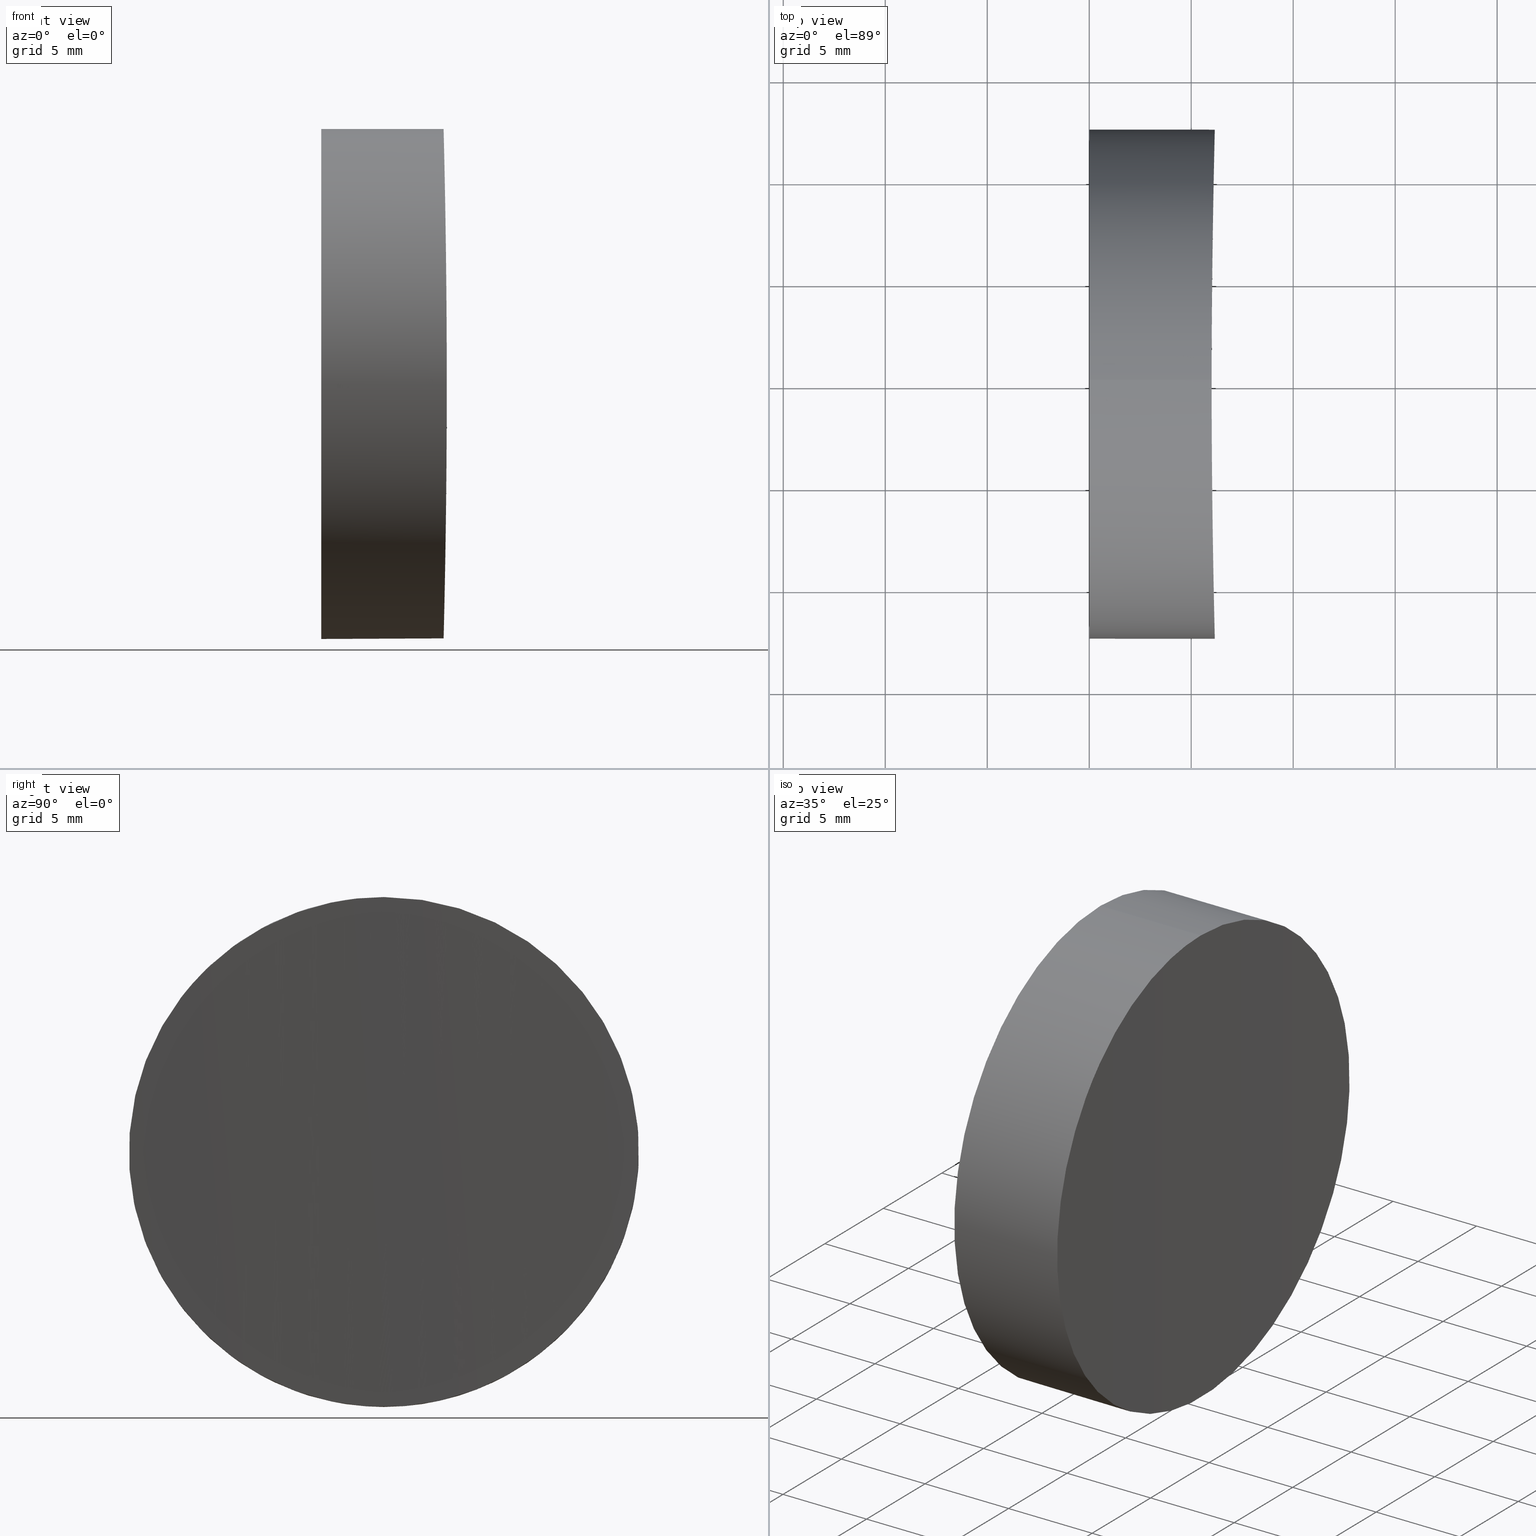
[diagram: canonical four-view strip — front | top / right | iso, engineering-drawing reading convention]
A machine part, canonical four-view strip (front | top / right | iso — engineering-drawing reading convention). The complete STEP part file that produces these views, byte-faithful:
ISO-10303-21;
HEADER;
FILE_DESCRIPTION (( 'STEP AP203' ),
    '1' );
FILE_NAME ('280014.STEP',
    '2022-07-05T10:01:24',
    ( '' ),
    ( '' ),
    'SwSTEP 2.0',
    'SolidWorks 2020',
    '' );
FILE_SCHEMA (( 'CONFIG_CONTROL_DESIGN' ));
ENDSEC;

DATA;
#1 = CARTESIAN_POINT ( 'NONE',  ( 6.010292670547192628, 3.232143093477285678, 12.08186998606612939 ) ) ;
#2 = CARTESIAN_POINT ( 'NONE',  ( 5.999992792815269205, -0.8113325247629140646, -12.50028828740421538 ) ) ;
#3 = CARTESIAN_POINT ( 'NONE',  ( 6.156284742604434257, -12.50041270756860712, 0.3994422538630924002 ) ) ;
#4 = CYLINDRICAL_SURFACE ( 'NONE', #46, 12.50000000000000000 ) ;
#5 = FACE_OUTER_BOUND ( 'NONE', #116, .T. ) ;
#6 = CARTESIAN_POINT ( 'NONE',  ( 6.148327014993650863, -12.17831593649998823, -2.846851168528373499 ) ) ;
#7 = CARTESIAN_POINT ( 'NONE',  ( 6.030569135716430829, -5.540645040115292019, 11.21244844883950620 ) ) ;
#8 = PERSON_AND_ORGANIZATION ( #186, #170 ) ;
#9 = CALENDAR_DATE ( 2022, 5, 7 ) ;
#10 = CALENDAR_DATE ( 2022, 5, 7 ) ;
#11 = APPLICATION_CONTEXT ( 'configuration controlled 3d designs of mechanical parts and assemblies' ) ;
#12 = CALENDAR_DATE ( 2022, 5, 7 ) ;
#13 = CARTESIAN_POINT ( 'NONE',  ( 6.000000000000003553, -1.409462824231155764E-15, 12.49999999999999645 ) ) ;
#14 = PRODUCT_DEFINITION_SHAPE ( 'NONE', 'NONE',  #192 ) ;
#15 = CARTESIAN_POINT ( 'NONE',  ( 6.015985966084421932, 4.017448805137438406, 11.84391980870430494 ) ) ;
#16 = CARTESIAN_POINT ( 'NONE',  ( 6.112774963268893025, 10.62136623918074463, -6.603214257255130448 ) ) ;
#17 = EDGE_CURVE ( 'NONE', #204, #204, #81, .T. ) ;
#18 = CARTESIAN_POINT ( 'NONE',  ( 6.146417605959685559, 12.10047923141288706, -3.239810737469968505 ) ) ;
#19 = CARTESIAN_POINT ( 'NONE',  ( 6.067896331134255306, 8.260254342264060412, -9.418006088365887152 ) ) ;
#20 = CARTESIAN_POINT ( 'NONE',  ( 0.000000000000000000, 0.000000000000000000, -12.50000000000000000 ) ) ;
#21 = CLOSED_SHELL ( 'NONE', ( #86, #213, #92 ) ) ;
#22 = CARTESIAN_POINT ( 'NONE',  ( 6.043684707578540483, -6.618082031561642431, 10.61222701291723247 ) ) ;
#23 = DIRECTION ( 'NONE',  ( 1.000000000000000000, 0.000000000000000000, 0.000000000000000000 ) ) ;
#24 = CARTESIAN_POINT ( 'NONE',  ( 6.145907554511733650, -12.07893045083605443, -3.243187859162115050 ) ) ;
#25 = CARTESIAN_POINT ( 'NONE',  ( 6.010445768813395873, -3.255507755709830864, 12.07553435725976243 ) ) ;
#26 = APPROVAL_ROLE ( '' ) ;
#27 = APPLICATION_PROTOCOL_DEFINITION ( 'international standard', 'config_control_design', 1994, #60 ) ;
#28 = PERSON_AND_ORGANIZATION_ROLE ( 'design_supplier' ) ;
#29 = APPROVAL_PERSON_ORGANIZATION ( #85, #127, #156 ) ;
#30 = SHAPE_DEFINITION_REPRESENTATION ( #14, #122 ) ;
#31 = CARTESIAN_POINT ( 'NONE',  ( 6.002528797189385479, 1.642331728322500739, -12.39850234459832024 ) ) ;
#32 = CARTESIAN_POINT ( 'NONE',  ( 6.152282760731973887, 12.33960810314300005, -2.037416175445684985 ) ) ;
#33 = PRODUCT_DEFINITION_FORMATION_WITH_SPECIFIED_SOURCE ( '�κ�', '', #162, .NOT_KNOWN. ) ;
#34 = CARTESIAN_POINT ( 'NONE',  ( 6.067936169767255805, 8.248213880968553013, 9.401422404739852468 ) ) ;
#35 = CARTESIAN_POINT ( 'NONE',  ( 6.088339591753397784, 9.416171550730881634, 8.261393552114677519 ) ) ;
#36 = CARTESIAN_POINT ( 'NONE',  ( 6.002044575011308503, 1.637883666556784856, 12.41896204738465670 ) ) ;
#37 = CARTESIAN_POINT ( 'NONE',  ( 6.136883101423474152, -11.69995866584111788, -4.419093219003374706 ) ) ;
#38 = CARTESIAN_POINT ( 'NONE',  ( 6.126005387527933443, -11.22889948034036856, -5.552610836619182422 ) ) ;
#39 = CC_DESIGN_PERSON_AND_ORGANIZATION_ASSIGNMENT ( #114, #172, ( #203 ) ) ;
#40 = CARTESIAN_POINT ( 'NONE',  ( 6.098804935424752216, -9.949877494393229327, 7.610260014203557688 ) ) ;
#41 = DIRECTION ( 'NONE',  ( 1.000000000000000000, 0.000000000000000000, 0.000000000000000000 ) ) ;
#42 =( GEOMETRIC_REPRESENTATION_CONTEXT ( 3 ) GLOBAL_UNCERTAINTY_ASSIGNED_CONTEXT ( ( #75 ) ) GLOBAL_UNIT_ASSIGNED_CONTEXT ( ( #151, #171, #184 ) ) REPRESENTATION_CONTEXT ( 'NONE', 'WORKASPACE' ) );
#43 = CARTESIAN_POINT ( 'NONE',  ( 6.000000000000005329, 0.000000000000000000, 12.50000000000000000 ) ) ;
#44 = CALENDAR_DATE ( 2022, 5, 7 ) ;
#45 = PERSON_AND_ORGANIZATION ( #186, #170 ) ;
#46 = AXIS2_PLACEMENT_3D ( 'NONE', #219, #74, #56 ) ;
#47 = DATE_AND_TIME ( #9, #66 ) ;
#48 = APPROVAL_ROLE ( '' ) ;
#49 = APPROVAL_STATUS ( 'not_yet_approved' ) ;
#50 = CARTESIAN_POINT ( 'NONE',  ( 6.140689798295675850, 11.86456590755928353, -4.019022801444676496 ) ) ;
#51 = CC_DESIGN_PERSON_AND_ORGANIZATION_ASSIGNMENT ( #222, #152, ( #33 ) ) ;
#52 = CARTESIAN_POINT ( 'NONE',  ( 6.052887244905313047, 7.280100250095212999, 10.16941279576479751 ) ) ;
#53 = LOCAL_TIME ( 18, 1, 24.00000000000000000, #80 ) ;
#54 = CARTESIAN_POINT ( 'NONE',  ( 6.015660909650877741, 4.029183250018432361, -11.86119059305516643 ) ) ;
#55 = CARTESIAN_POINT ( 'NONE',  ( 6.022461518817205928, -4.783881711124828406, -11.56982146353775143 ) ) ;
#56 = DIRECTION ( 'NONE',  ( 0.000000000000000000, 0.000000000000000000, 1.000000000000000000 ) ) ;
#57 = LOCAL_TIME ( 18, 1, 24.00000000000000000, #63 ) ;
#58 = CARTESIAN_POINT ( 'NONE',  ( 6.057651835901523008, -7.623481033800509010, -9.940332694473356767 ) ) ;
#59 = DIRECTION ( 'NONE',  ( -0.000000000000000000, -0.000000000000000000, 1.000000000000000000 ) ) ;
#60 = APPLICATION_CONTEXT ( 'configuration controlled 3d designs of mechanical parts and assemblies' ) ;
#61 = CARTESIAN_POINT ( 'NONE',  ( 6.146048870386205287, -12.08476631584554539, 3.221226547559720377 ) ) ;
#62 = CARTESIAN_POINT ( 'NONE',  ( 506.0000000000000000, 0.000000000000000000, -12.50000000000000000 ) ) ;
#63 = COORDINATED_UNIVERSAL_TIME_OFFSET ( 8, 0, .AHEAD. ) ;
#64 = PERSON_AND_ORGANIZATION ( #186, #170 ) ;
#65 = DATE_AND_TIME ( #12, #57 ) ;
#66 = LOCAL_TIME ( 18, 1, 24.00000000000000000, #99 ) ;
#67 = APPROVAL_DATE_TIME ( #84, #127 ) ;
#68 = CARTESIAN_POINT ( 'NONE',  ( 0.000000000000000000, 0.000000000000000000, 0.000000000000000000 ) ) ;
#69 = CARTESIAN_POINT ( 'NONE',  ( 6.000000000000003553, 0.8258452669612491581, 12.49999999999999645 ) ) ;
#70 = CARTESIAN_POINT ( 'NONE',  ( 6.038740338260234708, 6.261029042694365110, 10.84973641960681334 ) ) ;
#71 = CARTESIAN_POINT ( 'NONE',  ( 6.043613216776054564, 6.612551551566480335, -10.61555076965928812 ) ) ;
#72 = CARTESIAN_POINT ( 'NONE',  ( 6.007850020594385221, -2.830589290247153222, -12.18221647979964928 ) ) ;
#73 = CARTESIAN_POINT ( 'NONE',  ( 6.038833942803711885, -6.241994549186181906, -10.83764373039621987 ) ) ;
#74 = DIRECTION ( 'NONE',  ( -1.000000000000000000, -0.000000000000000000, -0.000000000000000000 ) ) ;
#75 = UNCERTAINTY_MEASURE_WITH_UNIT (LENGTH_MEASURE( 1.000000000000000082E-05 ), #151, 'distance_accuracy_value', 'NONE');
#76 = CARTESIAN_POINT ( 'NONE',  ( 6.088457363010114420, -9.422421938455494583, 8.254320889213618173 ) ) ;
#77 = CARTESIAN_POINT ( 'NONE',  ( 6.022650470004819567, -4.803517852742062111, 11.56168502131564679 ) ) ;
#78 = FACE_OUTER_BOUND ( 'NONE', #209, .T. ) ;
#79 = CALENDAR_DATE ( 2022, 5, 7 ) ;
#80 = COORDINATED_UNIVERSAL_TIME_OFFSET ( 8, 0, .AHEAD. ) ;
#81 = B_SPLINE_CURVE_WITH_KNOTS ( 'NONE', 3,
 ( #13, #69, #36, #176, #1, #15, #117, #212, #70, #52, #90, #34, #210, #35, #175, #119, #159, #103, #105, #226, #121, #104, #140, #225, #195, #138, #194, #32, #18, #50, #157, #101, #87, #16, #89, #193, #19, #139, #71, #141, #211, #214, #54, #120, #196, #31, #178, #177, #2, #100, #72, #144, #215, #55, #197, #73, #93, #58, #107, #217, #182, #216, #125, #198, #38, #37, #183, #24, #6, #146, #147, #3, #163, #179, #96, #218, #61, #200, #108, #166, #126, #40, #76, #97, #123, #22, #161, #7, #77, #149, #25, #150, #109, #167, #128 ),
 .UNSPECIFIED., .T., .F.,
 ( 4, 2, 2, 2, 2, 2, 2, 2, 2, 1, 2, 2, 2, 2, 2, 2, 2, 2, 2, 2, 2, 2, 2, 2, 2, 2, 2, 1, 2, 2, 2, 2, 2, 2, 2, 2, 2, 2, 2, 2, 2, 2, 2, 2, 2, 1, 2, 2, 4 ),
 ( 0.000000000000000000, 0.002442363419788307760, 0.003663545129682462074, 0.004884726839576616388, 0.007327090259364928485, 0.008548271969259085834, 0.009769453679153244918, 0.01221181709894155962, 0.01343299880883571870, 0.01465418051872987605, 0.01587536222862403687, 0.01709654393851819595, 0.01953890735830651065, 0.02076008906820066974, 0.02198127077809482535, 0.02442363419788314352, 0.02564481590777729914, 0.02686599761767145822, 0.02930836103745977292, 0.03175072445724809456, 0.03297190616714225364, 0.03419308787703641273, 0.03663545129682472395, 0.03785663300671887610, 0.03907781471661302825, 0.04152017813640133947, 0.04274135984629549856, 0.04396254155618964377, 0.04518372326608380285, 0.04640490497597795500, 0.04884726839576626622, 0.05006845010566042531, 0.05128963181555458439, 0.05373199523534290256, 0.05495317694523706858, 0.05617435865513122767, 0.05861672207491953890, 0.05983790378481370492, 0.06105908549470787094, 0.06228026720460203003, 0.06350144891449618911, 0.06594381233428450728, 0.06838617575407282545, 0.07082853917386114362, 0.07204972088375530270, 0.07327090259364946179, 0.07449208430354362087, 0.07571326601343779383, 0.07815562943322611200 ),
 .UNSPECIFIED. ) ;
#82 = DIRECTION ( 'NONE',  ( 0.000000000000000000, 0.000000000000000000, 1.000000000000000000 ) ) ;
#83 = PRODUCT_RELATED_PRODUCT_CATEGORY ( 'detail', '', ( #162 ) ) ;
#84 = DATE_AND_TIME ( #10, #95 ) ;
#85 = PERSON_AND_ORGANIZATION ( #186, #170 ) ;
#86 = ADVANCED_FACE ( 'NONE', ( #78, #220 ), #4, .T. ) ;
#87 = CARTESIAN_POINT ( 'NONE',  ( 6.117295368566469271, 10.83139257405778189, -6.252959065689877249 ) ) ;
#88 = CC_DESIGN_SECURITY_CLASSIFICATION ( #203, ( #33 ) ) ;
#89 = CARTESIAN_POINT ( 'NONE',  ( 6.098665327085710963, 9.942851456199610638, -7.619261261831955956 ) ) ;
#90 = CARTESIAN_POINT ( 'NONE',  ( 6.057831965167735255, 7.611182458307498067, 9.924196544048243140 ) ) ;
#91 = APPROVAL_PERSON_ORGANIZATION ( #8, #160, #48 ) ;
#92 = ADVANCED_FACE ( 'NONE', ( #181 ), #145, .F. ) ;
#93 = CARTESIAN_POINT ( 'NONE',  ( 6.043396875953490621, -6.596380097520057717, -10.62577944888865034 ) ) ;
#94 = CARTESIAN_POINT ( 'NONE',  ( 0.000000000000000000, 0.000000000000000000, 0.000000000000000000 ) ) ;
#95 = LOCAL_TIME ( 18, 1, 24.00000000000000000, #173 ) ;
#96 = CARTESIAN_POINT ( 'NONE',  ( 6.152325393783503849, -12.34133046088218499, 2.026648065116923192 ) ) ;
#97 = CARTESIAN_POINT ( 'NONE',  ( 6.068054310141151042, -8.269351584814078393, 9.409233385091932078 ) ) ;
#98 = CIRCLE ( 'NONE', #102, 12.50000000000000000 ) ;
#99 = COORDINATED_UNIVERSAL_TIME_OFFSET ( 8, 0, .AHEAD. ) ;
#100 = CARTESIAN_POINT ( 'NONE',  ( 6.001982091842539724, -1.622095850412115903, -12.42148708549549241 ) ) ;
#101 = CARTESIAN_POINT ( 'NONE',  ( 6.125830046003780893, 11.21836296139852429, -5.528733547284493177 ) ) ;
#102 = AXIS2_PLACEMENT_3D ( 'NONE', #94, #130, #164 ) ;
#103 = CARTESIAN_POINT ( 'NONE',  ( 6.125808034650680689, 11.21736317663651938, 5.530653462993464053 ) ) ;
#104 = CARTESIAN_POINT ( 'NONE',  ( 6.148351573824907490, 12.17932730315142109, 2.843087938728400932 ) ) ;
#105 = CARTESIAN_POINT ( 'NONE',  ( 6.133712293463065457, 11.56575599123640252, 4.793697361313744132 ) ) ;
#106 = CC_DESIGN_PERSON_AND_ORGANIZATION_ASSIGNMENT ( #64, #28, ( #33 ) ) ;
#107 = CARTESIAN_POINT ( 'NONE',  ( 6.067791013104477216, -8.253438066255107231, -9.423105046066837076 ) ) ;
#108 = CARTESIAN_POINT ( 'NONE',  ( 6.137086136676631831, -11.70862565714519121, 4.396175205205779868 ) ) ;
#109 = CARTESIAN_POINT ( 'NONE',  ( 6.002045768188047248, -1.643093396290443042, 12.41895271898074782 ) ) ;
#110 = DIRECTION ( 'NONE',  ( 0.000000000000000000, 0.000000000000000000, -1.000000000000000000 ) ) ;
#111 = VERTEX_POINT ( 'NONE', #20 ) ;
#112 = DATE_AND_TIME ( #79, #53 ) ;
#113 = CC_DESIGN_DATE_AND_TIME_ASSIGNMENT ( #47, #115, ( #203 ) ) ;
#114 = PERSON_AND_ORGANIZATION ( #186, #170 ) ;
#115 = DATE_TIME_ROLE ( 'classification_date' ) ;
#116 = EDGE_LOOP ( 'NONE', ( #191 ) ) ;
#117 = CARTESIAN_POINT ( 'NONE',  ( 6.019285398162104173, 4.407749688175683467, 11.70425413456952946 ) ) ;
#118 = CC_DESIGN_PERSON_AND_ORGANIZATION_ASSIGNMENT ( #190, #131, ( #192 ) ) ;
#119 = CARTESIAN_POINT ( 'NONE',  ( 6.112722508820872314, 10.61894600790194332, 6.607333877376363240 ) ) ;
#120 = CARTESIAN_POINT ( 'NONE',  ( 6.009921585310180170, 3.250019275927582552, -12.09768970726944382 ) ) ;
#121 = CARTESIAN_POINT ( 'NONE',  ( 6.145900052533685987, 12.07861396032124368, 3.244114648321167138 ) ) ;
#122 = ADVANCED_BREP_SHAPE_REPRESENTATION ( '280014', ( #158, #129 ), #42 ) ;
#123 = CARTESIAN_POINT ( 'NONE',  ( 6.057918396809962580, -7.640673038140616491, 9.926913081361554703 ) ) ;
#124 = CC_DESIGN_APPROVAL ( #127, ( #203 ) ) ;
#125 = CARTESIAN_POINT ( 'NONE',  ( 6.103237030032651056, -10.16258142039906076, -7.289655611641942201 ) ) ;
#126 = CARTESIAN_POINT ( 'NONE',  ( 6.117639436252103380, -10.85497518924324645, 6.251850388335598474 ) ) ;
#127 = APPROVAL ( #189, 'δָ��' ) ;
#128 = CARTESIAN_POINT ( 'NONE',  ( 6.000000000000003553, -1.409462824231155764E-15, 12.49999999999999645 ) ) ;
#129 = AXIS2_PLACEMENT_3D ( 'NONE', #68, #82, #208 ) ;
#130 = DIRECTION ( 'NONE',  ( 1.000000000000000000, 0.000000000000000000, 0.000000000000000000 ) ) ;
#131 = PERSON_AND_ORGANIZATION_ROLE ( 'creator' ) ;
#132 = APPROVAL_DATE_TIME ( #112, #160 ) ;
#133 = APPROVAL_PERSON_ORGANIZATION ( #45, #148, #26 ) ;
#134 = ORIENTED_EDGE ( 'NONE', *, *, #17, .F. ) ;
#135 = COORDINATED_UNIVERSAL_TIME_OFFSET ( 8, 0, .AHEAD. ) ;
#136 = EDGE_LOOP ( 'NONE', ( #134 ) ) ;
#137 = APPROVAL_STATUS ( 'not_yet_approved' ) ;
#138 = CARTESIAN_POINT ( 'NONE',  ( 6.155786658389289734, 12.48054497858155010, -0.8096325884152042462 ) ) ;
#139 = CARTESIAN_POINT ( 'NONE',  ( 6.057726930985872116, 7.627692444133160166, -9.936364155920731633 ) ) ;
#140 = CARTESIAN_POINT ( 'NONE',  ( 6.154258173092562068, 12.42015173803779149, 1.632936355969492936 ) ) ;
#141 = CARTESIAN_POINT ( 'NONE',  ( 6.039093211939057682, 6.262772985231269018, -10.82569917750823763 ) ) ;
#142 = AXIS2_PLACEMENT_3D ( 'NONE', #202, #41, #110 ) ;
#143 = CC_DESIGN_PERSON_AND_ORGANIZATION_ASSIGNMENT ( #221, #154, ( #162 ) ) ;
#144 = CARTESIAN_POINT ( 'NONE',  ( 6.010295733570911736, -3.232510474445385196, -12.08174043557620436 ) ) ;
#145 = CYLINDRICAL_SURFACE ( 'NONE', #199, 500.0000000000000000 ) ;
#146 = CARTESIAN_POINT ( 'NONE',  ( 6.154194760149957588, -12.41758607627007649, -1.648429112296679433 ) ) ;
#147 = CARTESIAN_POINT ( 'NONE',  ( 6.156253294877243931, -12.49915519098824568, -0.8370229426050678212 ) ) ;
#148 = APPROVAL ( #137, 'δָ��' ) ;
#149 = CARTESIAN_POINT ( 'NONE',  ( 6.016144553532662087, -4.036949830531725070, 11.83722504756151217 ) ) ;
#150 = CARTESIAN_POINT ( 'NONE',  ( 6.007994017674596954, -2.856125303067124310, 12.17631240932503722 ) ) ;
#151 =( LENGTH_UNIT ( ) NAMED_UNIT ( * ) SI_UNIT ( .MILLI., .METRE. ) );
#152 = PERSON_AND_ORGANIZATION_ROLE ( 'creator' ) ;
#153 = EDGE_LOOP ( 'NONE', ( #223 ) ) ;
#154 = PERSON_AND_ORGANIZATION_ROLE ( 'design_owner' ) ;
#155 = CC_DESIGN_APPROVAL ( #148, ( #192 ) ) ;
#156 = APPROVAL_ROLE ( '' ) ;
#157 = CARTESIAN_POINT ( 'NONE',  ( 6.129845465954605110, 11.39530982396777148, -5.154079076723708575 ) ) ;
#158 = MANIFOLD_SOLID_BREP ( '�г�-����1', #21 ) ;
#159 = CARTESIAN_POINT ( 'NONE',  ( 6.117302831073862635, 10.83172508948977608, 6.252287558816899349 ) ) ;
#160 = APPROVAL ( #49, 'δָ��' ) ;
#161 = CARTESIAN_POINT ( 'NONE',  ( 6.039093552615461213, -6.262779898734791573, 10.82568035068160128 ) ) ;
#162 = PRODUCT ( '280014', '280014', '', ( #185 ) ) ;
#163 = CARTESIAN_POINT ( 'NONE',  ( 6.155782089338003082, -12.48036073471225649, 0.8108002678666641483 ) ) ;
#164 = DIRECTION ( 'NONE',  ( 0.000000000000000000, 0.000000000000000000, -1.000000000000000000 ) ) ;
#165 = EDGE_CURVE ( 'NONE', #111, #111, #98, .T. ) ;
#166 = CARTESIAN_POINT ( 'NONE',  ( 6.126221525804340651, -11.23849975647303090, 5.533462575987526222 ) ) ;
#167 = CARTESIAN_POINT ( 'NONE',  ( 6.000000000000004441, -0.8258452669612550423, 12.49999999999999467 ) ) ;
#168 = APPROVAL_DATE_TIME ( #65, #148 ) ;
#169 = DESIGN_CONTEXT ( 'detailed design', #11, 'design' ) ;
#170 = ORGANIZATION ( 'δָ��', 'δָ��', '' ) ;
#171 =( NAMED_UNIT ( * ) PLANE_ANGLE_UNIT ( ) SI_UNIT ( $, .RADIAN. ) );
#172 = PERSON_AND_ORGANIZATION_ROLE ( 'classification_officer' ) ;
#173 = COORDINATED_UNIVERSAL_TIME_OFFSET ( 8, 0, .AHEAD. ) ;
#174 = CC_DESIGN_APPROVAL ( #160, ( #33 ) ) ;
#175 = CARTESIAN_POINT ( 'NONE',  ( 6.098477191476077586, 9.933596587657971710, 7.632113729309701000 ) ) ;
#176 = CARTESIAN_POINT ( 'NONE',  ( 6.007883885626907450, 2.836079422341573064, 12.18082402056852409 ) ) ;
#177 = CARTESIAN_POINT ( 'NONE',  ( 6.000003633022701344, 0.4123104841977441870, -12.49985467907963788 ) ) ;
#178 = CARTESIAN_POINT ( 'NONE',  ( 6.000506317704783044, 0.8214500348224201831, -12.47979702299500637 ) ) ;
#179 = CARTESIAN_POINT ( 'NONE',  ( 6.153802329291376161, -12.40081678458249392, 1.623743889330208745 ) ) ;
#180 = CC_DESIGN_DATE_AND_TIME_ASSIGNMENT ( #187, #207, ( #192 ) ) ;
#181 = FACE_OUTER_BOUND ( 'NONE', #136, .T. ) ;
#182 = CARTESIAN_POINT ( 'NONE',  ( 6.088180946584755837, -9.393692254588836832, -8.256981952967580085 ) ) ;
#183 = CARTESIAN_POINT ( 'NONE',  ( 6.140187941233312685, -11.83987263078917351, -4.029422342301749893 ) ) ;
#184 =( NAMED_UNIT ( * ) SI_UNIT ( $, .STERADIAN. ) SOLID_ANGLE_UNIT ( ) );
#185 = MECHANICAL_CONTEXT ( 'NONE', #60, 'mechanical' ) ;
#186 = PERSON ( 'δָ��', 'δָ��', 'δָ��', ('δָ��'), ('δָ��'), ('δָ��') ) ;
#187 = DATE_AND_TIME ( #44, #224 ) ;
#188 = ORIENTED_EDGE ( 'NONE', *, *, #17, .T. ) ;
#189 = APPROVAL_STATUS ( 'not_yet_approved' ) ;
#190 = PERSON_AND_ORGANIZATION ( #186, #170 ) ;
#191 = ORIENTED_EDGE ( 'NONE', *, *, #165, .F. ) ;
#192 = PRODUCT_DEFINITION ( 'δ֪', '', #33, #169 ) ;
#193 = CARTESIAN_POINT ( 'NONE',  ( 6.088524781731738500, 9.426400462062630936, -8.250673597241295454 ) ) ;
#194 = CARTESIAN_POINT ( 'NONE',  ( 6.153787473249678008, 12.40021922059417925, -1.629132030201231984 ) ) ;
#195 = CARTESIAN_POINT ( 'NONE',  ( 6.156279799924127438, 12.50021506196134347, -0.4009660374139348837 ) ) ;
#196 = CARTESIAN_POINT ( 'NONE',  ( 6.004037997019426420, 2.048966890751320324, -12.33768272680989853 ) ) ;
#197 = CARTESIAN_POINT ( 'NONE',  ( 6.030349699568939847, -5.520764411577949282, -11.22221804684443391 ) ) ;
#198 = CARTESIAN_POINT ( 'NONE',  ( 6.117410002370611721, -10.84449045246644516, -6.270214276776838069 ) ) ;
#199 = AXIS2_PLACEMENT_3D ( 'NONE', #62, #59, #23 ) ;
#200 = CARTESIAN_POINT ( 'NONE',  ( 6.140377934996631204, -11.84788022504153560, 4.005697386519394776 ) ) ;
#201 = PLANE ( 'NONE',  #142 ) ;
#202 = CARTESIAN_POINT ( 'NONE',  ( 0.000000000000000000, 0.000000000000000000, 0.000000000000000000 ) ) ;
#203 = SECURITY_CLASSIFICATION ( '', '', #206 ) ;
#204 = VERTEX_POINT ( 'NONE', #43 ) ;
#205 = APPLICATION_PROTOCOL_DEFINITION ( 'international standard', 'config_control_design', 1994, #11 ) ;
#206 = SECURITY_CLASSIFICATION_LEVEL ( 'unclassified' ) ;
#207 = DATE_TIME_ROLE ( 'creation_date' ) ;
#208 = DIRECTION ( 'NONE',  ( 1.000000000000000000, 0.000000000000000000, 0.000000000000000000 ) ) ;
#209 = EDGE_LOOP ( 'NONE', ( #188 ) ) ;
#210 = CARTESIAN_POINT ( 'NONE',  ( 6.073048073413654713, 8.551366095152012292, 9.126355539349404467 ) ) ;
#211 = CARTESIAN_POINT ( 'NONE',  ( 6.030561174511646527, 5.539935228047928817, -11.21281435748753630 ) ) ;
#212 = CARTESIAN_POINT ( 'NONE',  ( 6.030153655718152983, 5.543074127905229354, 11.23368229270129071 ) ) ;
#213 = ADVANCED_FACE ( 'NONE', ( #5 ), #201, .F. ) ;
#214 = CARTESIAN_POINT ( 'NONE',  ( 6.026536888951729232, 5.165229720363562649, -11.39027839530823272 ) ) ;
#215 = CARTESIAN_POINT ( 'NONE',  ( 6.015975682842594985, -4.016062031181496295, -11.84435772107599405 ) ) ;
#216 = CARTESIAN_POINT ( 'NONE',  ( 6.098272732142500097, -9.916216923863929722, -7.621538366001249010 ) ) ;
#217 = CARTESIAN_POINT ( 'NONE',  ( 6.083073739222145448, -9.118664572382353839, -8.559555687771341681 ) ) ;
#218 = CARTESIAN_POINT ( 'NONE',  ( 6.148448705390682001, -12.18330477166740167, 2.825389312149225063 ) ) ;
#219 = CARTESIAN_POINT ( 'NONE',  ( 10.00000000000000000, 0.000000000000000000, 0.000000000000000000 ) ) ;
#220 = FACE_OUTER_BOUND ( 'NONE', #153, .T. ) ;
#221 = PERSON_AND_ORGANIZATION ( #186, #170 ) ;
#222 = PERSON_AND_ORGANIZATION ( #186, #170 ) ;
#223 = ORIENTED_EDGE ( 'NONE', *, *, #165, .T. ) ;
#224 = LOCAL_TIME ( 18, 1, 24.00000000000000000, #135 ) ;
#225 = CARTESIAN_POINT ( 'NONE',  ( 6.156263532553046147, 12.49956457039986901, 0.8218801519578651238 ) ) ;
#226 = CARTESIAN_POINT ( 'NONE',  ( 6.140209550272380135, 11.84077873488494603, 4.026556097388397149 ) ) ;
ENDSEC;
END-ISO-10303-21;
